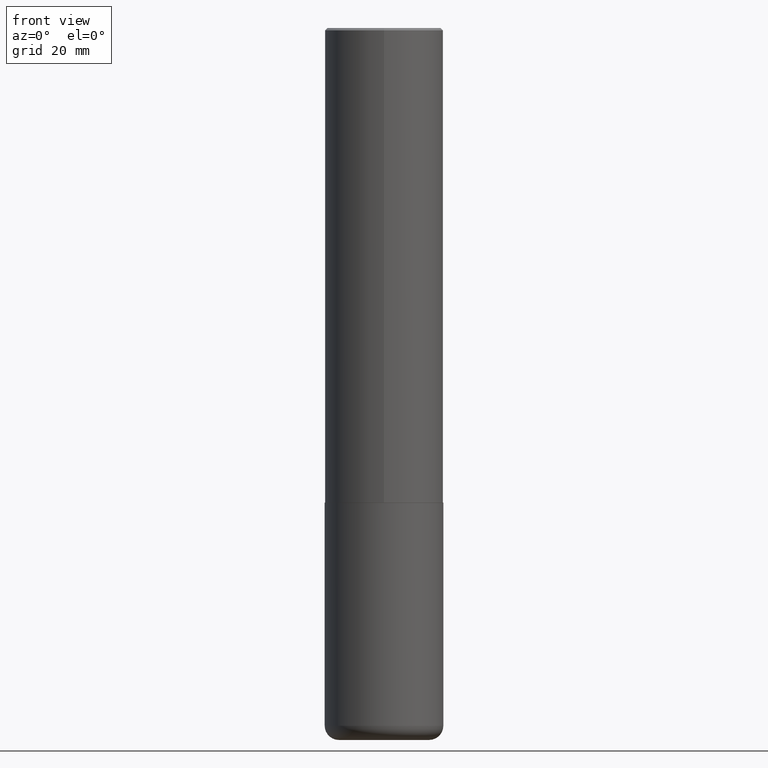
[diagram: clean part render]
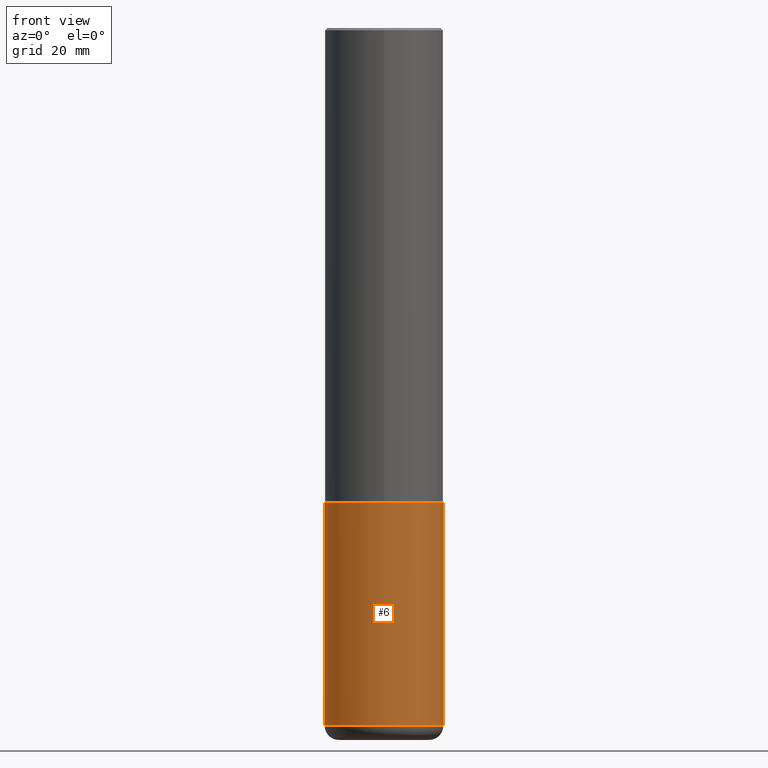
[diagram: same view with one face highlighted and labeled with its STEP entity id]
A machine part, front view. The second image highlights one B-rep face of the part: STEP entity #6.
In plain terms, the highlighted cylindrical surface (partial cylindrical patch) has radius 12.7 mm, axis along (-0, 0, 1).
Its self-contained STEP definition (entity closure, byte-faithful):
#2 = FACE_OUTER_BOUND ( 'NONE', #121, .T. ) ;
#6 = ADVANCED_FACE ( 'NONE', ( #2 ), #103, .T. ) ;
#22 = CARTESIAN_POINT ( 'NONE',  ( 1.437935658036860328E-28, -2.052991027239769923E-14, -5.880000000000000782 ) ) ;
#41 = CARTESIAN_POINT ( 'NONE',  ( 9.781875224740546387E-29, -1.396592535537258233E-14, -4.000000000000000000 ) ) ;
#48 = DIRECTION ( 'NONE',  ( -2.445468806185136877E-29, 3.491481338843145188E-15, 1.000000000000000000 ) ) ;
#51 = EDGE_CURVE ( 'NONE', #411, #239, #145, .T. ) ;
#64 = VERTEX_POINT ( 'NONE', #331 ) ;
#69 = DIRECTION ( 'NONE',  ( -2.445468806185136597E-29, 3.491481338843145583E-15, 1.000000000000000000 ) ) ;
#85 = EDGE_CURVE ( 'NONE', #64, #100, #366, .T. ) ;
#91 = DIRECTION ( 'NONE',  ( 1.000000000000000000, -6.982962677686262766E-15, 0.000000000000000000 ) ) ;
#98 = CARTESIAN_POINT ( 'NONE',  ( 0.5000000000000002220, -2.402139161124082943E-14, -5.880000000000000782 ) ) ;
#100 = VERTEX_POINT ( 'NONE', #296 ) ;
#103 = CYLINDRICAL_SURFACE ( 'NONE', #346, 0.5000000000000000000 ) ;
#116 = AXIS2_PLACEMENT_3D ( 'NONE', #41, #361, #169 ) ;
#121 = EDGE_LOOP ( 'NONE', ( #416, #310, #302, #304 ) ) ;
#132 = CARTESIAN_POINT ( 'NONE',  ( 0.000000000000000000, 0.000000000000000000, 0.000000000000000000 ) ) ;
#139 = EDGE_CURVE ( 'NONE', #100, #239, #402, .T. ) ;
#145 = LINE ( 'NONE', #177, #272 ) ;
#156 = CARTESIAN_POINT ( 'NONE',  ( 0.5000000000000000000, -1.745740669421571411E-14, -4.000000000000000000 ) ) ;
#169 = DIRECTION ( 'NONE',  ( 1.000000000000000000, -6.982962677686266711E-15, 0.000000000000000000 ) ) ;
#177 = CARTESIAN_POINT ( 'NONE',  ( 0.5000000000000000000, -3.491481338843133355E-15, 2.438088387897967896E-29 ) ) ;
#180 = VECTOR ( 'NONE', #48, 39.37007874015748143 ) ;
#197 = DIRECTION ( 'NONE',  ( 1.000000000000000000, -6.982962677686266711E-15, 4.876176775795935793E-29 ) ) ;
#230 = DIRECTION ( 'NONE',  ( -2.445468806185136877E-29, 3.491481338843145188E-15, 1.000000000000000000 ) ) ;
#239 = VERTEX_POINT ( 'NONE', #156 ) ;
#272 = VECTOR ( 'NONE', #230, 39.37007874015748143 ) ;
#281 = AXIS2_PLACEMENT_3D ( 'NONE', #22, #410, #91 ) ;
#296 = CARTESIAN_POINT ( 'NONE',  ( -0.5000000000000000000, -1.369520413508463906E-14, -4.000000000000000000 ) ) ;
#302 = ORIENTED_EDGE ( 'NONE', *, *, #51, .T. ) ;
#304 = ORIENTED_EDGE ( 'NONE', *, *, #139, .F. ) ;
#305 = EDGE_CURVE ( 'NONE', #64, #411, #372, .T. ) ;
#310 = ORIENTED_EDGE ( 'NONE', *, *, #305, .T. ) ;
#326 = CARTESIAN_POINT ( 'NONE',  ( -0.5000000000000000000, 3.552713678800500929E-15, -2.459467545127452891E-29 ) ) ;
#331 = CARTESIAN_POINT ( 'NONE',  ( -0.5000000000000002220, -1.697719659359719514E-14, -5.880000000000000782 ) ) ;
#346 = AXIS2_PLACEMENT_3D ( 'NONE', #132, #69, #197 ) ;
#361 = DIRECTION ( 'NONE',  ( -2.445468806185136597E-29, 3.491481338843145583E-15, 1.000000000000000000 ) ) ;
#366 = LINE ( 'NONE', #326, #180 ) ;
#372 = CIRCLE ( 'NONE', #281, 0.5000000000000000000 ) ;
#402 = CIRCLE ( 'NONE', #116, 0.5000000000000000000 ) ;
#410 = DIRECTION ( 'NONE',  ( -2.445468806185136597E-29, 3.491481338843145583E-15, 1.000000000000000000 ) ) ;
#411 = VERTEX_POINT ( 'NONE', #98 ) ;
#416 = ORIENTED_EDGE ( 'NONE', *, *, #85, .F. ) ;